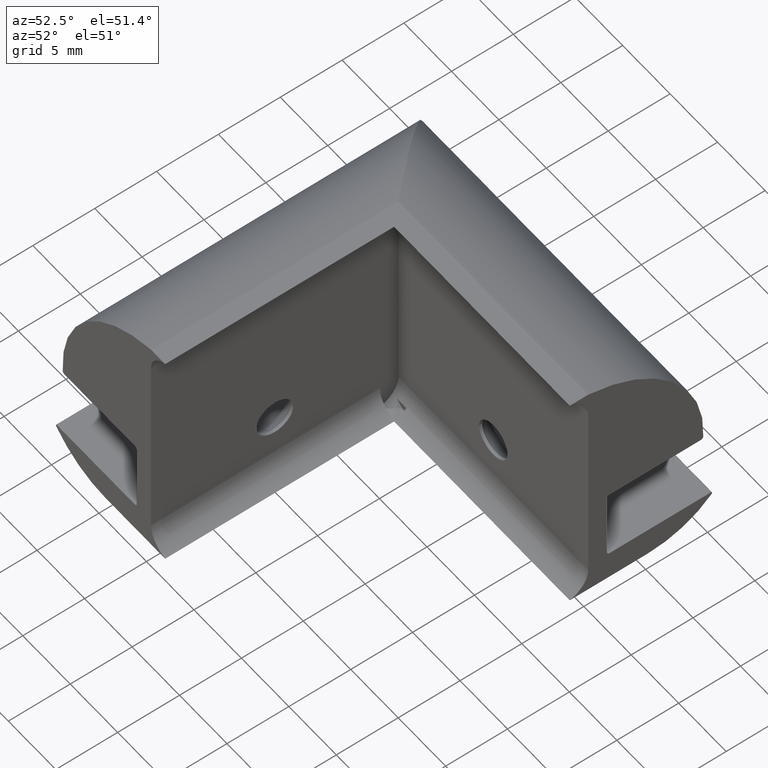
[diagram: clean part render]
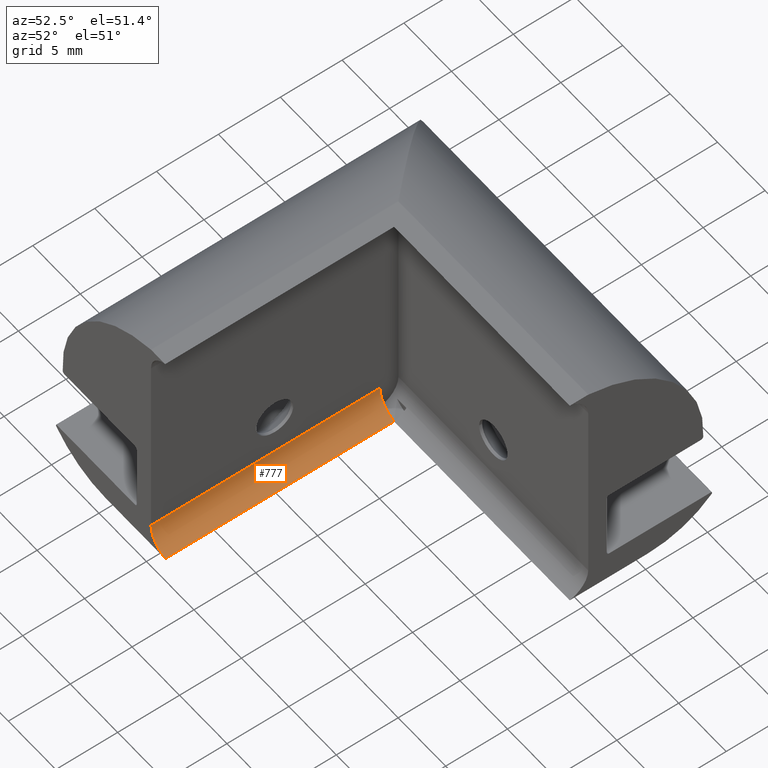
[diagram: same view with one face highlighted and labeled with its STEP entity id]
A machine part, auxiliary view. The second image highlights one B-rep face of the part: STEP entity #777.
In plain terms, the highlighted cylindrical surface (edge-blend (fillet) strip) has radius 2 mm, axis along (0, 1, 0).
Its self-contained STEP definition (entity closure, byte-faithful):
#53=CYLINDRICAL_SURFACE('',#851,2.);
#78=FACE_OUTER_BOUND('',#122,.T.);
#122=EDGE_LOOP('',(#555,#556,#557,#558));
#170=LINE('',#1206,#239);
#171=LINE('',#1209,#240);
#239=VECTOR('',#963,10.);
#240=VECTOR('',#966,10.);
#314=CIRCLE('',#852,2.);
#315=CIRCLE('',#853,2.);
#351=VERTEX_POINT('',#1202);
#352=VERTEX_POINT('',#1203);
#353=VERTEX_POINT('',#1205);
#354=VERTEX_POINT('',#1207);
#428=EDGE_CURVE('',#351,#352,#314,.T.);
#429=EDGE_CURVE('',#353,#351,#170,.T.);
#430=EDGE_CURVE('',#354,#353,#315,.T.);
#431=EDGE_CURVE('',#352,#354,#171,.T.);
#555=ORIENTED_EDGE('',*,*,#428,.F.);
#556=ORIENTED_EDGE('',*,*,#429,.F.);
#557=ORIENTED_EDGE('',*,*,#430,.F.);
#558=ORIENTED_EDGE('',*,*,#431,.F.);
#777=ADVANCED_FACE('',(#78),#53,.F.);
#851=AXIS2_PLACEMENT_3D('',#1201,#959,#960);
#852=AXIS2_PLACEMENT_3D('',#1204,#961,#962);
#853=AXIS2_PLACEMENT_3D('',#1208,#964,#965);
#959=DIRECTION('center_axis',(0.,1.,0.));
#960=DIRECTION('ref_axis',(-1.,0.,-1.38777878078145E-16));
#961=DIRECTION('center_axis',(3.88578058618805E-16,-1.,0.));
#962=DIRECTION('ref_axis',(-1.,0.,-1.38777878078145E-16));
#963=DIRECTION('',(0.,1.,0.));
#964=DIRECTION('center_axis',(0.,1.,0.));
#965=DIRECTION('ref_axis',(-1.,0.,-1.38777878078145E-16));
#966=DIRECTION('',(0.,-1.,0.));
#1201=CARTESIAN_POINT('Origin',(6.49999999999999,-9.25,-8.06350832689629));
#1202=CARTESIAN_POINT('',(4.49999999999999,9.24999999999999,-8.06350832689629));
#1203=CARTESIAN_POINT('',(6.,9.25,-10.));
#1204=CARTESIAN_POINT('Origin',(6.49999999999999,9.25,-8.06350832689629));
#1205=CARTESIAN_POINT('',(4.49999999999999,-9.25,-8.06350832689629));
#1206=CARTESIAN_POINT('',(4.49999999999999,-9.25,-8.06350832689629));
#1207=CARTESIAN_POINT('',(6.,-9.25,-10.));
#1208=CARTESIAN_POINT('Origin',(6.49999999999999,-9.25,-8.06350832689629));
#1209=CARTESIAN_POINT('',(6.,9.25,-10.));